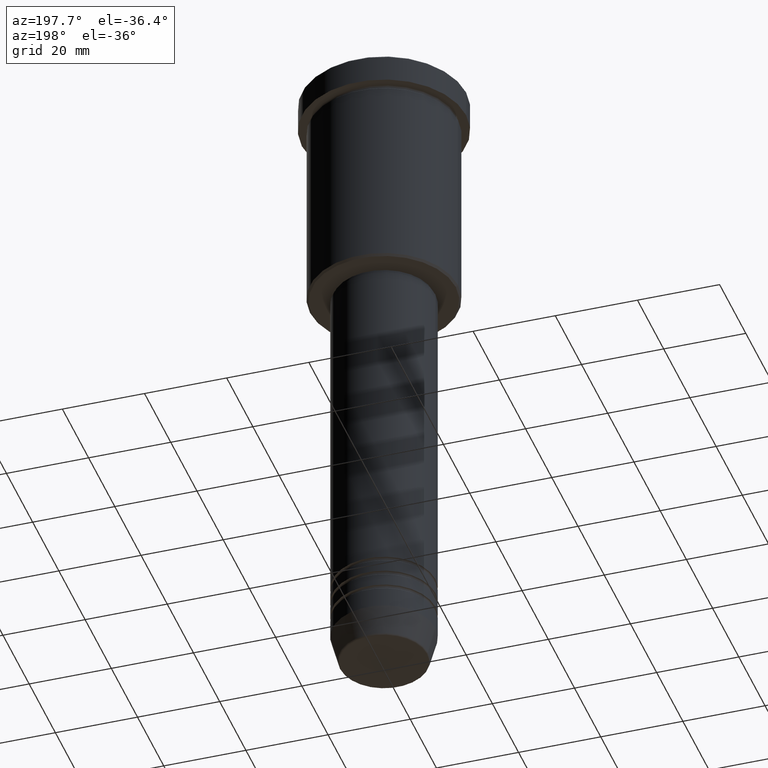
[diagram: clean part render]
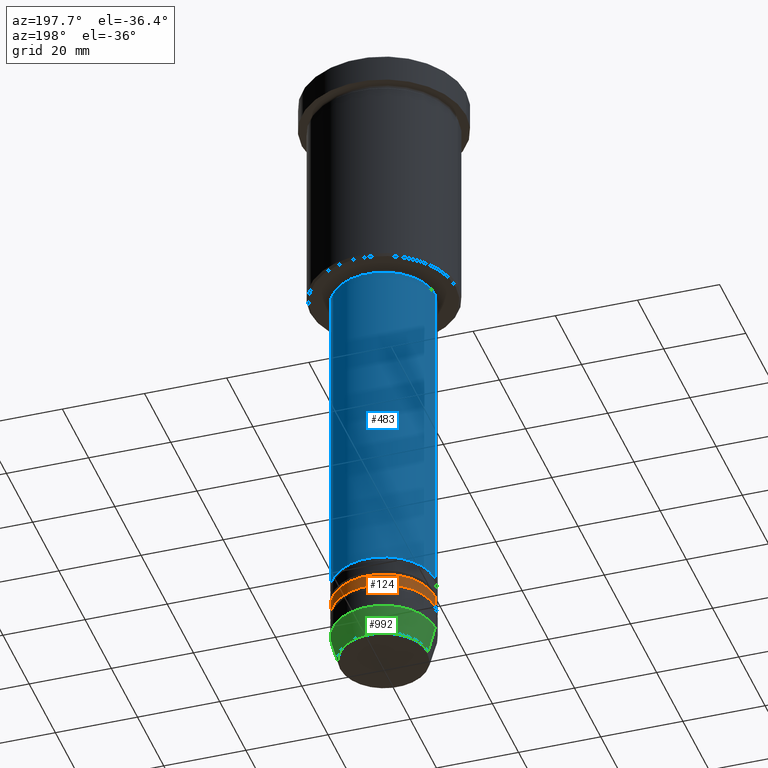
[diagram: same view with three faces highlighted in distinct colors, each labeled with its STEP entity id]
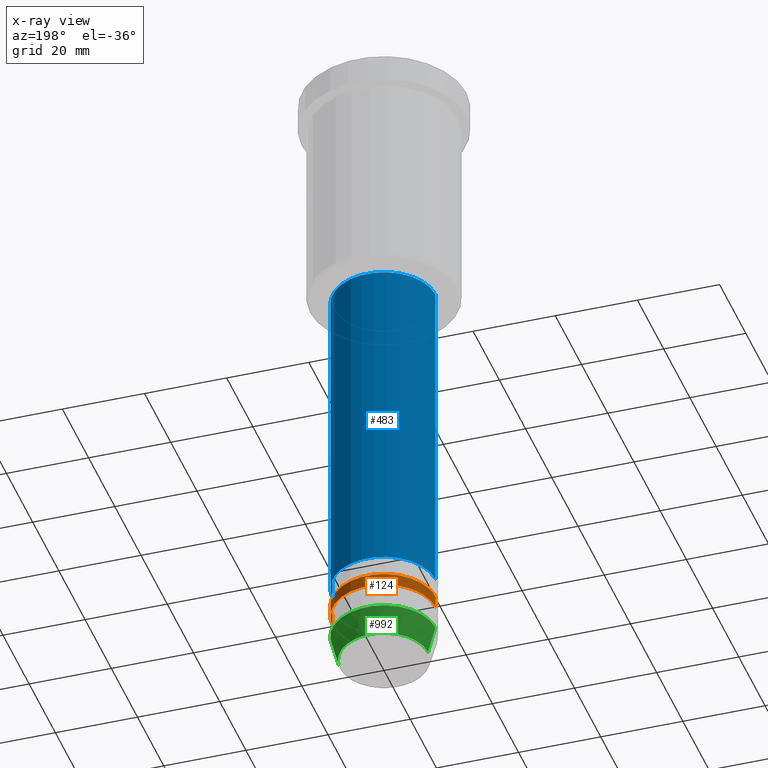
[diagram: x-ray of the same camera — body ghosted, the three highlighted faces saturated]
A machine part, auxiliary view with three faces highlighted in distinct colors.
The next image is the same camera in x-ray (body ghosted, the three faces saturated) — at least one of them is partly hidden behind the body in this view.
Their STEP definitions:

[orange] entity #124 — the highlighted cylindrical surface (partial cylindrical patch) has radius 12.5 mm, axis along (-0, -0, 1).
#14 = CARTESIAN_POINT ( 'NONE',  ( 12.50000000000000000, 0.000000000000000000, 0.000000000000000000 ) ) ;
#29 = LINE ( 'NONE', #14, #575 ) ;
#41 = EDGE_CURVE ( 'NONE', #751, #62, #819, .T. ) ;
#62 = VERTEX_POINT ( 'NONE', #1021 ) ;
#108 = AXIS2_PLACEMENT_3D ( 'NONE', #657, #388, #754 ) ;
#124 = ADVANCED_FACE ( 'NONE', ( #1015 ), #1127, .T. ) ;
#130 = AXIS2_PLACEMENT_3D ( 'NONE', #761, #485, #852 ) ;
#135 = ORIENTED_EDGE ( 'NONE', *, *, #1063, .F. ) ;
#184 = CARTESIAN_POINT ( 'NONE',  ( -12.50000000000000000, 1.530808498934191521E-15, -146.9999999999999716 ) ) ;
#208 = CARTESIAN_POINT ( 'NONE',  ( 12.50000000000000000, 0.000000000000000000, -146.9999999999999716 ) ) ;
#218 = EDGE_CURVE ( 'NONE', #526, #62, #505, .T. ) ;
#241 = CARTESIAN_POINT ( 'NONE',  ( 12.50000000000000000, 0.000000000000000000, -144.0000000000000000 ) ) ;
#244 = CARTESIAN_POINT ( 'NONE',  ( 0.000000000000000000, 0.000000000000000000, -146.9999999999999716 ) ) ;
#249 = ORIENTED_EDGE ( 'NONE', *, *, #698, .T. ) ;
#337 = DIRECTION ( 'NONE',  ( 1.000000000000000000, 0.000000000000000000, 0.000000000000000000 ) ) ;
#350 = ORIENTED_EDGE ( 'NONE', *, *, #41, .F. ) ;
#388 = DIRECTION ( 'NONE',  ( -0.000000000000000000, -0.000000000000000000, 1.000000000000000000 ) ) ;
#394 = DIRECTION ( 'NONE',  ( -0.000000000000000000, -0.000000000000000000, 1.000000000000000000 ) ) ;
#423 = ORIENTED_EDGE ( 'NONE', *, *, #218, .T. ) ;
#485 = DIRECTION ( 'NONE',  ( -0.000000000000000000, -0.000000000000000000, 1.000000000000000000 ) ) ;
#496 = CARTESIAN_POINT ( 'NONE',  ( -12.50000000000000000, 1.530808498934191521E-15, 0.000000000000000000 ) ) ;
#505 = LINE ( 'NONE', #496, #1020 ) ;
#526 = VERTEX_POINT ( 'NONE', #184 ) ;
#575 = VECTOR ( 'NONE', #394, 1000.000000000000000 ) ;
#625 = CIRCLE ( 'NONE', #1060, 12.50000000000000000 ) ;
#657 = CARTESIAN_POINT ( 'NONE',  ( 0.000000000000000000, 0.000000000000000000, 0.000000000000000000 ) ) ;
#698 = EDGE_CURVE ( 'NONE', #1087, #526, #625, .T. ) ;
#720 = DIRECTION ( 'NONE',  ( -0.000000000000000000, -0.000000000000000000, 1.000000000000000000 ) ) ;
#751 = VERTEX_POINT ( 'NONE', #241 ) ;
#754 = DIRECTION ( 'NONE',  ( 1.000000000000000000, 0.000000000000000000, 0.000000000000000000 ) ) ;
#761 = CARTESIAN_POINT ( 'NONE',  ( 0.000000000000000000, 0.000000000000000000, -144.0000000000000000 ) ) ;
#819 = CIRCLE ( 'NONE', #130, 12.50000000000000000 ) ;
#852 = DIRECTION ( 'NONE',  ( 1.000000000000000000, 0.000000000000000000, 0.000000000000000000 ) ) ;
#880 = DIRECTION ( 'NONE',  ( -0.000000000000000000, -0.000000000000000000, 1.000000000000000000 ) ) ;
#1015 = FACE_OUTER_BOUND ( 'NONE', #1066, .T. ) ;
#1020 = VECTOR ( 'NONE', #880, 1000.000000000000000 ) ;
#1021 = CARTESIAN_POINT ( 'NONE',  ( -12.50000000000000000, 1.530808498934191521E-15, -144.0000000000000000 ) ) ;
#1060 = AXIS2_PLACEMENT_3D ( 'NONE', #244, #720, #337 ) ;
#1063 = EDGE_CURVE ( 'NONE', #1087, #751, #29, .T. ) ;
#1066 = EDGE_LOOP ( 'NONE', ( #249, #423, #350, #135 ) ) ;
#1087 = VERTEX_POINT ( 'NONE', #208 ) ;
#1127 = CYLINDRICAL_SURFACE ( 'NONE', #108, 12.50000000000000000 ) ;

[blue] entity #483 — the highlighted cylindrical surface (partial cylindrical patch) has radius 12.5 mm, axis along (-0, -0, 1).
#11 = CARTESIAN_POINT ( 'NONE',  ( 0.000000000000000000, 0.000000000000000000, 0.000000000000000000 ) ) ;
#110 = VECTOR ( 'NONE', #768, 1000.000000000000000 ) ;
#151 = CARTESIAN_POINT ( 'NONE',  ( 0.000000000000000000, 0.000000000000000000, -57.00000000000001421 ) ) ;
#224 = CYLINDRICAL_SURFACE ( 'NONE', #1059, 12.50000000000000000 ) ;
#260 = DIRECTION ( 'NONE',  ( 1.000000000000000000, 0.000000000000000000, 0.000000000000000000 ) ) ;
#287 = AXIS2_PLACEMENT_3D ( 'NONE', #1058, #777, #1147 ) ;
#325 = VECTOR ( 'NONE', #991, 1000.000000000000000 ) ;
#371 = LINE ( 'NONE', #621, #325 ) ;
#398 = FACE_OUTER_BOUND ( 'NONE', #1046, .T. ) ;
#438 = AXIS2_PLACEMENT_3D ( 'NONE', #151, #875, #260 ) ;
#483 = ADVANCED_FACE ( 'NONE', ( #398 ), #224, .T. ) ;
#548 = CARTESIAN_POINT ( 'NONE',  ( 12.50000000000000000, 0.000000000000000000, -57.00000000000001421 ) ) ;
#576 = CARTESIAN_POINT ( 'NONE',  ( 12.50000000000000000, 0.000000000000000000, 0.000000000000000000 ) ) ;
#590 = EDGE_CURVE ( 'NONE', #869, #990, #1016, .T. ) ;
#598 = VERTEX_POINT ( 'NONE', #926 ) ;
#621 = CARTESIAN_POINT ( 'NONE',  ( -12.50000000000000000, 1.530808498934191521E-15, 0.000000000000000000 ) ) ;
#735 = ORIENTED_EDGE ( 'NONE', *, *, #790, .F. ) ;
#760 = DIRECTION ( 'NONE',  ( 1.000000000000000000, 0.000000000000000000, 0.000000000000000000 ) ) ;
#766 = CIRCLE ( 'NONE', #438, 12.50000000000000000 ) ;
#768 = DIRECTION ( 'NONE',  ( -0.000000000000000000, -0.000000000000000000, 1.000000000000000000 ) ) ;
#769 = EDGE_CURVE ( 'NONE', #869, #887, #1180, .T. ) ;
#775 = ORIENTED_EDGE ( 'NONE', *, *, #892, .T. ) ;
#777 = DIRECTION ( 'NONE',  ( -0.000000000000000000, -0.000000000000000000, 1.000000000000000000 ) ) ;
#789 = CARTESIAN_POINT ( 'NONE',  ( 12.50000000000000000, 0.000000000000000000, -138.9999999999999716 ) ) ;
#790 = EDGE_CURVE ( 'NONE', #990, #598, #766, .T. ) ;
#794 = CARTESIAN_POINT ( 'NONE',  ( -12.50000000000000000, 1.530808498934191521E-15, -138.9999999999999716 ) ) ;
#869 = VERTEX_POINT ( 'NONE', #789 ) ;
#875 = DIRECTION ( 'NONE',  ( -0.000000000000000000, -0.000000000000000000, 1.000000000000000000 ) ) ;
#884 = ORIENTED_EDGE ( 'NONE', *, *, #590, .F. ) ;
#887 = VERTEX_POINT ( 'NONE', #794 ) ;
#892 = EDGE_CURVE ( 'NONE', #887, #598, #371, .T. ) ;
#926 = CARTESIAN_POINT ( 'NONE',  ( -12.50000000000000000, 1.530808498934191521E-15, -57.00000000000001421 ) ) ;
#990 = VERTEX_POINT ( 'NONE', #548 ) ;
#991 = DIRECTION ( 'NONE',  ( -0.000000000000000000, -0.000000000000000000, 1.000000000000000000 ) ) ;
#1007 = DIRECTION ( 'NONE',  ( -0.000000000000000000, -0.000000000000000000, 1.000000000000000000 ) ) ;
#1016 = LINE ( 'NONE', #576, #110 ) ;
#1046 = EDGE_LOOP ( 'NONE', ( #1166, #775, #735, #884 ) ) ;
#1058 = CARTESIAN_POINT ( 'NONE',  ( 0.000000000000000000, 0.000000000000000000, -138.9999999999999716 ) ) ;
#1059 = AXIS2_PLACEMENT_3D ( 'NONE', #11, #1007, #760 ) ;
#1147 = DIRECTION ( 'NONE',  ( 1.000000000000000000, 0.000000000000000000, 0.000000000000000000 ) ) ;
#1166 = ORIENTED_EDGE ( 'NONE', *, *, #769, .T. ) ;
#1180 = CIRCLE ( 'NONE', #287, 12.50000000000000000 ) ;

[green] entity #992 — the highlighted conical surface has half-angle 15 deg.
#8 = CARTESIAN_POINT ( 'NONE',  ( -10.72365507213719660, 1.422038742429750713E-15, -159.6294095225512706 ) ) ;
#17 = CIRCLE ( 'NONE', #963, 10.72365507213719660 ) ;
#73 = AXIS2_PLACEMENT_3D ( 'NONE', #270, #88, #456 ) ;
#75 = EDGE_CURVE ( 'NONE', #830, #78, #816, .T. ) ;
#78 = VERTEX_POINT ( 'NONE', #731 ) ;
#88 = DIRECTION ( 'NONE',  ( -0.000000000000000000, -0.000000000000000000, 1.000000000000000000 ) ) ;
#120 = DIRECTION ( 'NONE',  ( 1.000000000000000000, 0.000000000000000000, 0.000000000000000000 ) ) ;
#146 = AXIS2_PLACEMENT_3D ( 'NONE', #850, #1032, #120 ) ;
#172 = CONICAL_SURFACE ( 'NONE', #73, 12.50000000000000000, 0.2617993877991490193 ) ;
#248 = EDGE_CURVE ( 'NONE', #830, #654, #17, .T. ) ;
#270 = CARTESIAN_POINT ( 'NONE',  ( 0.000000000000000000, 0.000000000000000000, -153.0000000000000000 ) ) ;
#297 = LINE ( 'NONE', #647, #725 ) ;
#343 = CIRCLE ( 'NONE', #146, 12.50000000000000000 ) ;
#368 = CARTESIAN_POINT ( 'NONE',  ( 0.000000000000000000, 0.000000000000000000, -159.6294095225512706 ) ) ;
#389 = VERTEX_POINT ( 'NONE', #524 ) ;
#456 = DIRECTION ( 'NONE',  ( 1.000000000000000000, 0.000000000000000000, 0.000000000000000000 ) ) ;
#459 = DIRECTION ( 'NONE',  ( -0.2588190451025203509, 3.169619151431760011E-17, 0.9659258262890684232 ) ) ;
#472 = EDGE_CURVE ( 'NONE', #78, #389, #343, .T. ) ;
#503 = ORIENTED_EDGE ( 'NONE', *, *, #472, .F. ) ;
#520 = EDGE_CURVE ( 'NONE', #654, #389, #297, .T. ) ;
#524 = CARTESIAN_POINT ( 'NONE',  ( -12.50000000000000000, 1.530808498934191521E-15, -153.0000000000000000 ) ) ;
#544 = ORIENTED_EDGE ( 'NONE', *, *, #248, .T. ) ;
#561 = ORIENTED_EDGE ( 'NONE', *, *, #75, .F. ) ;
#647 = CARTESIAN_POINT ( 'NONE',  ( -12.50000000000000000, 1.530808498934191521E-15, -153.0000000000000000 ) ) ;
#654 = VERTEX_POINT ( 'NONE', #8 ) ;
#690 = ORIENTED_EDGE ( 'NONE', *, *, #520, .T. ) ;
#701 = EDGE_LOOP ( 'NONE', ( #544, #690, #503, #561 ) ) ;
#725 = VECTOR ( 'NONE', #459, 1000.000000000000000 ) ;
#731 = CARTESIAN_POINT ( 'NONE',  ( 12.50000000000000000, 0.000000000000000000, -153.0000000000000000 ) ) ;
#732 = DIRECTION ( 'NONE',  ( -0.000000000000000000, -0.000000000000000000, 1.000000000000000000 ) ) ;
#743 = CARTESIAN_POINT ( 'NONE',  ( 12.50000000000000000, 0.000000000000000000, -153.0000000000000000 ) ) ;
#816 = LINE ( 'NONE', #743, #1144 ) ;
#830 = VERTEX_POINT ( 'NONE', #1053 ) ;
#850 = CARTESIAN_POINT ( 'NONE',  ( 0.000000000000000000, 0.000000000000000000, -153.0000000000000000 ) ) ;
#907 = FACE_OUTER_BOUND ( 'NONE', #701, .T. ) ;
#963 = AXIS2_PLACEMENT_3D ( 'NONE', #368, #732, #986 ) ;
#986 = DIRECTION ( 'NONE',  ( 1.000000000000000000, 0.000000000000000000, 0.000000000000000000 ) ) ;
#992 = ADVANCED_FACE ( 'NONE', ( #907 ), #172, .T. ) ;
#1032 = DIRECTION ( 'NONE',  ( -0.000000000000000000, -0.000000000000000000, 1.000000000000000000 ) ) ;
#1053 = CARTESIAN_POINT ( 'NONE',  ( 10.72365507213719660, 0.000000000000000000, -159.6294095225512706 ) ) ;
#1144 = VECTOR ( 'NONE', #1179, 1000.000000000000000 ) ;
#1179 = DIRECTION ( 'NONE',  ( 0.2588190451025203509, 0.000000000000000000, 0.9659258262890684232 ) ) ;